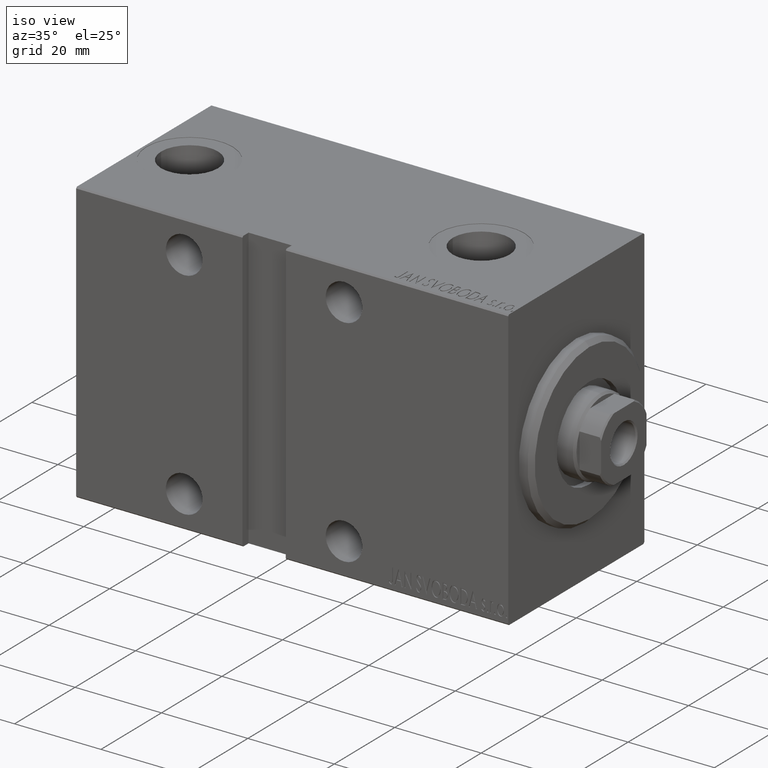
[diagram: clean part render]
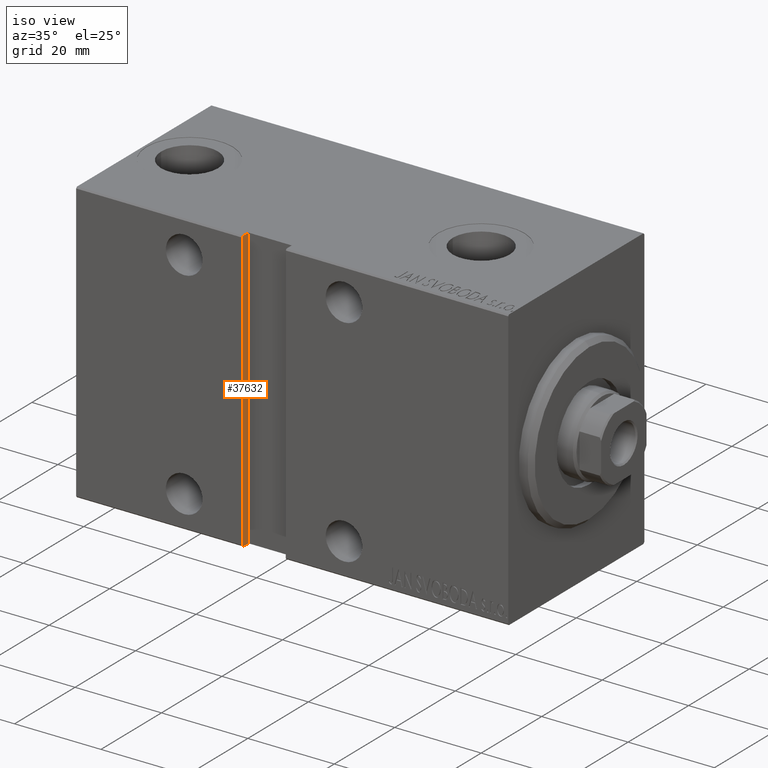
[diagram: same view with one face highlighted and labeled with its STEP entity id]
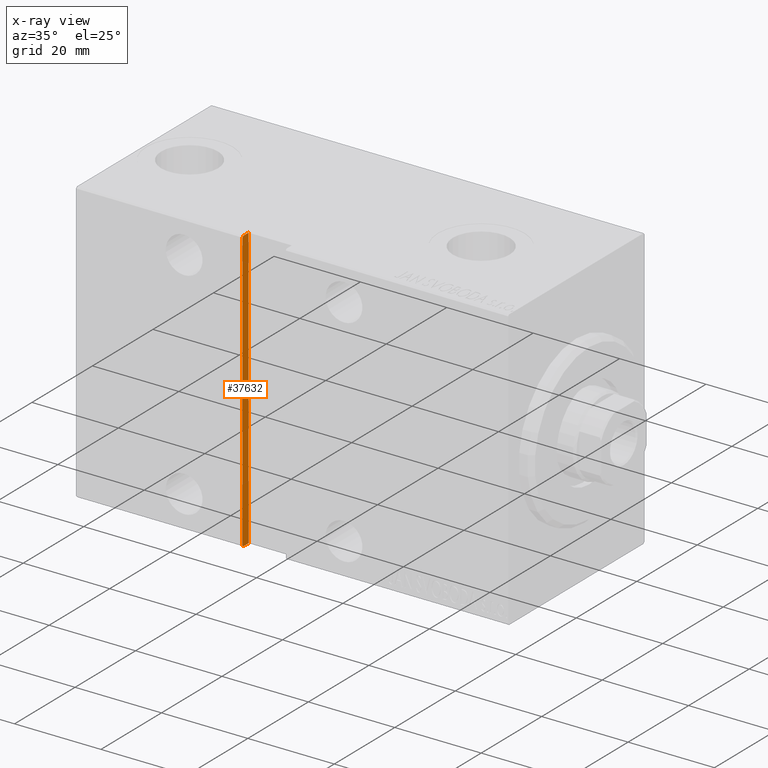
[diagram: x-ray of the same camera — body ghosted, the highlighted face saturated]
A machine part, iso view. The second image highlights one B-rep face of the part: STEP entity #37632.
The next image is the same camera in x-ray: the body ghosted, the highlighted face saturated — about 0% of this face is hidden behind the body in this view.
In plain terms, the highlighted planar face has unit normal (-1, 0, 0).
Its self-contained STEP definition (entity closure, byte-faithful):
#556 = CARTESIAN_POINT ( 'NONE',  ( 61.50000000000001421, 20.49999999999999645, 32.50000000000000711 ) ) ;
#755 = CARTESIAN_POINT ( 'NONE',  ( 61.50000000000001421, 22.50000000000000355, -32.19999999999998153 ) ) ;
#1359 = ORIENTED_EDGE ( 'NONE', *, *, #10595, .T. ) ;
#2707 = VECTOR ( 'NONE', #31482, 1000.000000000000114 ) ;
#2949 = EDGE_CURVE ( 'NONE', #11771, #18945, #40380, .T. ) ;
#3674 = DIRECTION ( 'NONE',  ( 0.000000000000000000, 0.000000000000000000, -1.000000000000000000 ) ) ;
#3901 = CARTESIAN_POINT ( 'NONE',  ( 61.50000000000001421, 20.50000000000000355, -32.49999999999995737 ) ) ;
#5559 = VERTEX_POINT ( 'NONE', #43048 ) ;
#6706 = AXIS2_PLACEMENT_3D ( 'NONE', #3901, #25013, #3674 ) ;
#7278 = CARTESIAN_POINT ( 'NONE',  ( 61.50000000000001421, 20.50000000000000355, -32.49999999999995737 ) ) ;
#9219 = EDGE_CURVE ( 'NONE', #5559, #11771, #28107, .T. ) ;
#10595 = EDGE_CURVE ( 'NONE', #18945, #29793, #24793, .T. ) ;
#11513 = PLANE ( 'NONE',  #6706 ) ;
#11658 = EDGE_CURVE ( 'NONE', #24693, #29793, #29279, .T. ) ;
#11771 = VERTEX_POINT ( 'NONE', #30153 ) ;
#12181 = DIRECTION ( 'NONE',  ( -0.000000000000000000, 1.000000000000000000, 1.261617073437677752E-16 ) ) ;
#12432 = CARTESIAN_POINT ( 'NONE',  ( 61.50000000000001421, 20.50000000000000711, -32.50000000000000000 ) ) ;
#12737 = DIRECTION ( 'NONE',  ( -0.000000000000000000, 1.067522139062650918E-16, -1.000000000000000000 ) ) ;
#13216 = ORIENTED_EDGE ( 'NONE', *, *, #2949, .T. ) ;
#14259 = DIRECTION ( 'NONE',  ( -0.000000000000000000, 1.000000000000000000, 1.261617073437677752E-16 ) ) ;
#15208 = EDGE_CURVE ( 'NONE', #42282, #24693, #24580, .T. ) ;
#15302 = CARTESIAN_POINT ( 'NONE',  ( 61.50000000000001421, 22.19999999999998153, -32.49999999999995737 ) ) ;
#16339 = CARTESIAN_POINT ( 'NONE',  ( 61.50000000000001421, 22.50000000000000355, -32.49999999999995737 ) ) ;
#17063 = VECTOR ( 'NONE', #20964, 1000.000000000000114 ) ;
#17450 = ORIENTED_EDGE ( 'NONE', *, *, #15208, .F. ) ;
#18105 = CARTESIAN_POINT ( 'NONE',  ( 61.50000000000001421, 22.50000000000000355, -32.19999999999998153 ) ) ;
#18238 = EDGE_LOOP ( 'NONE', ( #13216, #1359, #23189, #17450, #42230, #33650 ) ) ;
#18945 = VERTEX_POINT ( 'NONE', #18105 ) ;
#20964 = DIRECTION ( 'NONE',  ( 0.000000000000000000, -0.7071067811865474617, -0.7071067811865474617 ) ) ;
#23189 = ORIENTED_EDGE ( 'NONE', *, *, #11658, .F. ) ;
#23822 = EDGE_CURVE ( 'NONE', #42282, #5559, #31339, .T. ) ;
#24580 = LINE ( 'NONE', #7278, #42919 ) ;
#24693 = VERTEX_POINT ( 'NONE', #12432 ) ;
#24734 = VECTOR ( 'NONE', #12737, 1000.000000000000000 ) ;
#24793 = LINE ( 'NONE', #755, #17063 ) ;
#25013 = DIRECTION ( 'NONE',  ( 1.000000000000000000, 0.000000000000000000, 0.000000000000000000 ) ) ;
#28107 = LINE ( 'NONE', #38664, #2707 ) ;
#29279 = LINE ( 'NONE', #42993, #37908 ) ;
#29793 = VERTEX_POINT ( 'NONE', #15302 ) ;
#30153 = CARTESIAN_POINT ( 'NONE',  ( 61.50000000000001421, 22.49999999999999645, 32.19999999999998153 ) ) ;
#31339 = LINE ( 'NONE', #556, #38080 ) ;
#31482 = DIRECTION ( 'NONE',  ( -0.000000000000000000, 0.7071067811865392461, -0.7071067811865556774 ) ) ;
#31549 = DIRECTION ( 'NONE',  ( -0.000000000000000000, 1.067522139062650918E-16, -1.000000000000000000 ) ) ;
#33650 = ORIENTED_EDGE ( 'NONE', *, *, #9219, .T. ) ;
#34673 = FACE_OUTER_BOUND ( 'NONE', #18238, .T. ) ;
#37161 = CARTESIAN_POINT ( 'NONE',  ( 61.50000000000001421, 20.49999999999999645, 32.50000000000000711 ) ) ;
#37632 = ADVANCED_FACE ( 'NONE', ( #34673 ), #11513, .F. ) ;
#37908 = VECTOR ( 'NONE', #12181, 1000.000000000000000 ) ;
#38080 = VECTOR ( 'NONE', #14259, 1000.000000000000000 ) ;
#38664 = CARTESIAN_POINT ( 'NONE',  ( 61.50000000000001421, 22.19999999999997442, 32.50000000000000711 ) ) ;
#40380 = LINE ( 'NONE', #16339, #24734 ) ;
#42230 = ORIENTED_EDGE ( 'NONE', *, *, #23822, .T. ) ;
#42282 = VERTEX_POINT ( 'NONE', #37161 ) ;
#42919 = VECTOR ( 'NONE', #31549, 1000.000000000000000 ) ;
#42993 = CARTESIAN_POINT ( 'NONE',  ( 61.50000000000001421, 20.50000000000000355, -32.49999999999995737 ) ) ;
#43048 = CARTESIAN_POINT ( 'NONE',  ( 61.50000000000001421, 22.19999999999997442, 32.50000000000000711 ) ) ;